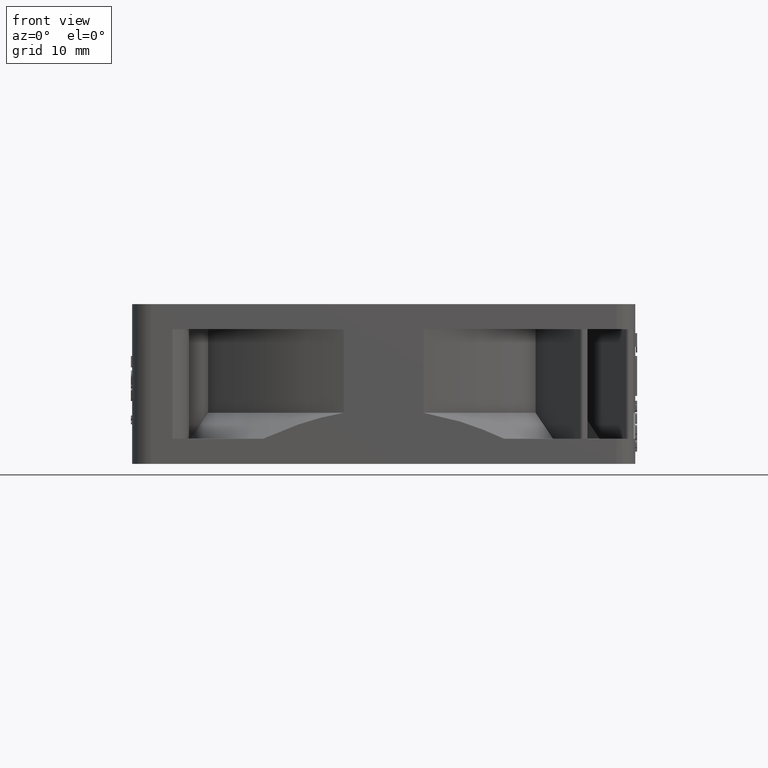
[diagram: clean part render]
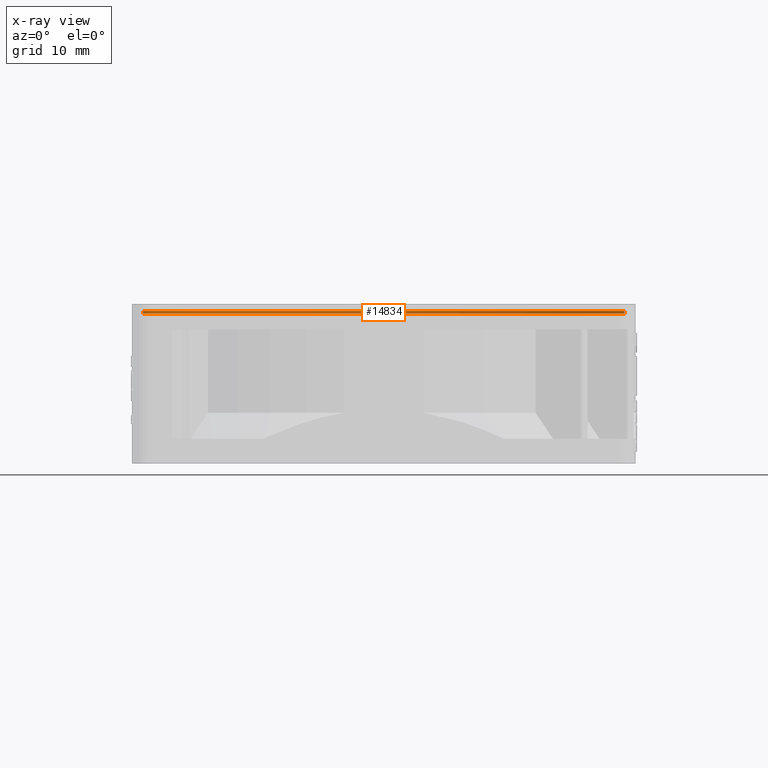
[diagram: x-ray — body ghosted, one internal face saturated and labeled with its STEP entity id]
A machine part, front view, then the same camera in x-ray: the body is ghosted and one INTERNAL B-rep face — a face not visible from any outside direction — is saturated and labeled: STEP entity #14834.
In plain terms, the highlighted cylindrical surface (partial cylindrical patch) has radius 38.3 mm, axis along (0, 0, 1).
Its self-contained STEP definition (entity closure, byte-faithful):
#1988 = LINE ( 'NONE', #17344, #7316 ) ;
#2565 = DIRECTION ( 'NONE',  ( 0.0000000000000000000, 0.0000000000000000000, 1.000000000000000000 ) ) ;
#3045 = CARTESIAN_POINT ( 'NONE',  ( 38.29999999999999700, 0.0000000000000000000, -1.100000000000000300 ) ) ;
#3988 = VERTEX_POINT ( 'NONE', #17750 ) ;
#4528 = VECTOR ( 'NONE', #2565, 1000.000000000000000 ) ;
#6164 = DIRECTION ( 'NONE',  ( 1.000000000000000000, 0.0000000000000000000, 0.0000000000000000000 ) ) ;
#6531 = CARTESIAN_POINT ( 'NONE',  ( 0.0000000000000000000, 0.0000000000000000000, -1.500000000000000000 ) ) ;
#6537 = CARTESIAN_POINT ( 'NONE',  ( 0.0000000000000000000, 0.0000000000000000000, -24.10000000000000100 ) ) ;
#6653 = AXIS2_PLACEMENT_3D ( 'NONE', #11504, #34591, #31370 ) ;
#7316 = VECTOR ( 'NONE', #17709, 1000.000000000000000 ) ;
#7514 = CYLINDRICAL_SURFACE ( 'NONE', #11379, 38.29999999999999700 ) ;
#8386 = FACE_OUTER_BOUND ( 'NONE', #12048, .T. ) ;
#9514 = DIRECTION ( 'NONE',  ( 1.000000000000000000, 0.0000000000000000000, 0.0000000000000000000 ) ) ;
#10303 = CIRCLE ( 'NONE', #21745, 38.29999999999999700 ) ;
#11379 = AXIS2_PLACEMENT_3D ( 'NONE', #6537, #17475, #6164 ) ;
#11504 = CARTESIAN_POINT ( 'NONE',  ( 0.0000000000000000000, 0.0000000000000000000, -1.100000000000000300 ) ) ;
#12048 = EDGE_LOOP ( 'NONE', ( #22020, #25993, #14579, #27067 ) ) ;
#12295 = DIRECTION ( 'NONE',  ( 0.0000000000000000000, 0.0000000000000000000, 1.000000000000000000 ) ) ;
#14579 = ORIENTED_EDGE ( 'NONE', *, *, #18175, .F. ) ;
#14834 = ADVANCED_FACE ( 'NONE', ( #8386 ), #7514, .T. ) ;
#15127 = EDGE_CURVE ( 'NONE', #19709, #20406, #26383, .T. ) ;
#16828 = CARTESIAN_POINT ( 'NONE',  ( 38.29999999999999700, 0.0000000000000000000, -24.10000000000000100 ) ) ;
#17344 = CARTESIAN_POINT ( 'NONE',  ( -38.29999999999999700, 4.690397240734362000E-015, -24.10000000000000100 ) ) ;
#17475 = DIRECTION ( 'NONE',  ( 0.0000000000000000000, 0.0000000000000000000, 1.000000000000000000 ) ) ;
#17709 = DIRECTION ( 'NONE',  ( 0.0000000000000000000, 0.0000000000000000000, 1.000000000000000000 ) ) ;
#17750 = CARTESIAN_POINT ( 'NONE',  ( -38.29999999999999700, 4.690397240734362000E-015, -1.100000000000000300 ) ) ;
#18175 = EDGE_CURVE ( 'NONE', #20406, #3988, #34534, .T. ) ;
#19432 = EDGE_CURVE ( 'NONE', #26321, #3988, #1988, .T. ) ;
#19709 = VERTEX_POINT ( 'NONE', #29234 ) ;
#20406 = VERTEX_POINT ( 'NONE', #3045 ) ;
#21745 = AXIS2_PLACEMENT_3D ( 'NONE', #6531, #12295, #9514 ) ;
#22020 = ORIENTED_EDGE ( 'NONE', *, *, #23281, .T. ) ;
#23281 = EDGE_CURVE ( 'NONE', #19709, #26321, #10303, .T. ) ;
#25993 = ORIENTED_EDGE ( 'NONE', *, *, #19432, .T. ) ;
#26321 = VERTEX_POINT ( 'NONE', #28970 ) ;
#26383 = LINE ( 'NONE', #16828, #4528 ) ;
#27067 = ORIENTED_EDGE ( 'NONE', *, *, #15127, .F. ) ;
#28970 = CARTESIAN_POINT ( 'NONE',  ( -38.29999999999999700, 4.782245750670414200E-015, -1.500000000000000000 ) ) ;
#29234 = CARTESIAN_POINT ( 'NONE',  ( 38.29999999999999700, 0.0000000000000000000, -1.500000000000000000 ) ) ;
#31370 = DIRECTION ( 'NONE',  ( 1.000000000000000000, 0.0000000000000000000, 0.0000000000000000000 ) ) ;
#34534 = CIRCLE ( 'NONE', #6653, 38.29999999999999700 ) ;
#34591 = DIRECTION ( 'NONE',  ( 0.0000000000000000000, 0.0000000000000000000, 1.000000000000000000 ) ) ;